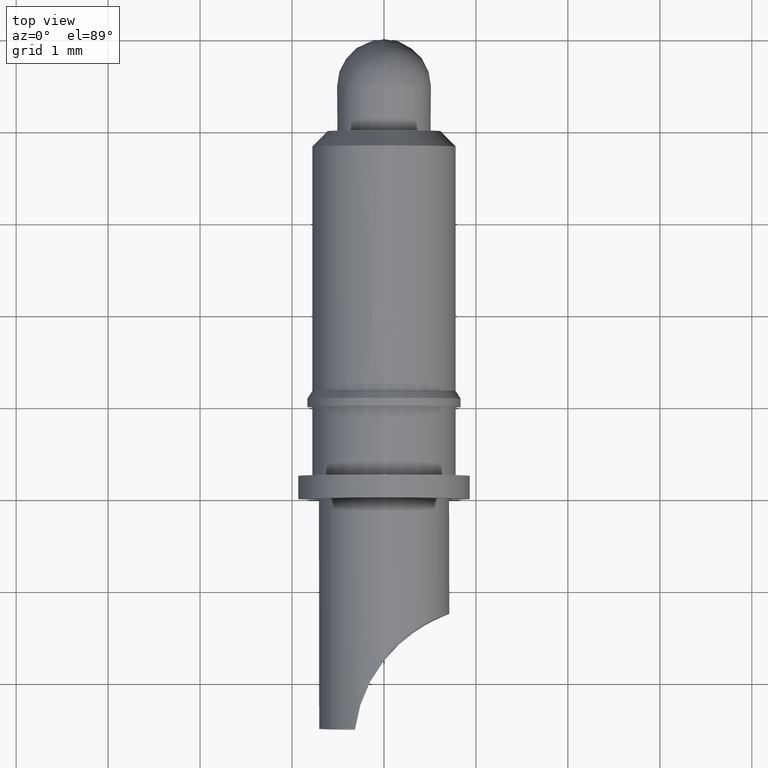
[diagram: clean part render]
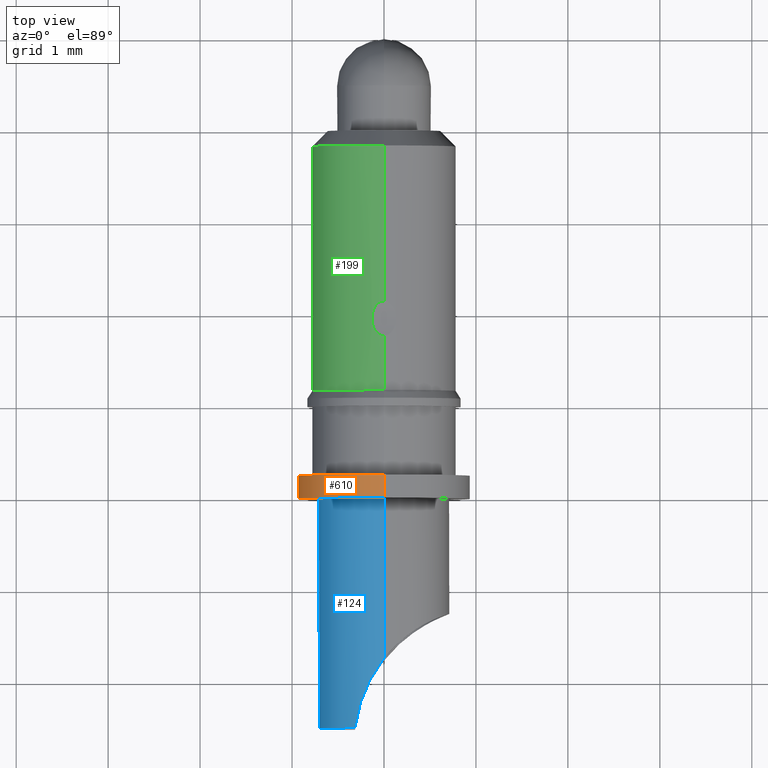
[diagram: same view with three faces highlighted in distinct colors, each labeled with its STEP entity id]
A machine part, top view with three faces highlighted in distinct colors.
Their STEP definitions:

[orange] entity #610 — the highlighted cylindrical surface (partial cylindrical patch) has radius 0.94 mm, axis along (-0, -1, -0).
#39 = VECTOR ( 'NONE', #562, 1000.000000000000000 ) ;
#64 = ORIENTED_EDGE ( 'NONE', *, *, #715, .T. ) ;
#71 = VERTEX_POINT ( 'NONE', #404 ) ;
#145 = VERTEX_POINT ( 'NONE', #155 ) ;
#148 = DIRECTION ( 'NONE',  ( -0.0000000000000000000, -1.000000000000000000, -0.0000000000000000000 ) ) ;
#155 = CARTESIAN_POINT ( 'NONE',  ( 0.0000000000000000000, -4.750000000000000000, -0.9400000000000000600 ) ) ;
#179 = LINE ( 'NONE', #631, #39 ) ;
#182 = DIRECTION ( 'NONE',  ( 0.0000000000000000000, 0.0000000000000000000, -1.000000000000000000 ) ) ;
#226 = VECTOR ( 'NONE', #148, 1000.000000000000000 ) ;
#230 = CARTESIAN_POINT ( 'NONE',  ( 0.0000000000000000000, -5.000000000000000000, -0.9399999999999999500 ) ) ;
#263 = ORIENTED_EDGE ( 'NONE', *, *, #1008, .F. ) ;
#280 = DIRECTION ( 'NONE',  ( 0.0000000000000000000, 0.0000000000000000000, -1.000000000000000000 ) ) ;
#320 = CYLINDRICAL_SURFACE ( 'NONE', #582, 0.9400000000000000600 ) ;
#338 = DIRECTION ( 'NONE',  ( 0.0000000000000000000, 0.0000000000000000000, -1.000000000000000000 ) ) ;
#367 = FACE_OUTER_BOUND ( 'NONE', #968, .T. ) ;
#404 = CARTESIAN_POINT ( 'NONE',  ( 1.151167991198511900E-016, -5.000000000000000000, 0.9399999999999999500 ) ) ;
#476 = DIRECTION ( 'NONE',  ( -0.0000000000000000000, -1.000000000000000000, -0.0000000000000000000 ) ) ;
#508 = VERTEX_POINT ( 'NONE', #230 ) ;
#536 = CARTESIAN_POINT ( 'NONE',  ( 1.151167991198512200E-016, -4.750000000000000000, 0.9400000000000000600 ) ) ;
#562 = DIRECTION ( 'NONE',  ( -0.0000000000000000000, -1.000000000000000000, -0.0000000000000000000 ) ) ;
#575 = DIRECTION ( 'NONE',  ( -0.0000000000000000000, -1.000000000000000000, -0.0000000000000000000 ) ) ;
#582 = AXIS2_PLACEMENT_3D ( 'NONE', #630, #476, #182 ) ;
#600 = AXIS2_PLACEMENT_3D ( 'NONE', #682, #852, #280 ) ;
#610 = ADVANCED_FACE ( 'NONE', ( #367 ), #320, .T. ) ;
#630 = CARTESIAN_POINT ( 'NONE',  ( 0.0000000000000000000, -7.500000000000000000, 0.0000000000000000000 ) ) ;
#631 = CARTESIAN_POINT ( 'NONE',  ( 1.151167991198512200E-016, -7.500000000000000000, 0.9400000000000000600 ) ) ;
#682 = CARTESIAN_POINT ( 'NONE',  ( 0.0000000000000000000, -5.000000000000000000, 0.0000000000000000000 ) ) ;
#715 = EDGE_CURVE ( 'NONE', #978, #145, #905, .T. ) ;
#735 = CIRCLE ( 'NONE', #600, 0.9399999999999999500 ) ;
#758 = CARTESIAN_POINT ( 'NONE',  ( 0.0000000000000000000, -4.750000000000000000, 0.0000000000000000000 ) ) ;
#790 = CARTESIAN_POINT ( 'NONE',  ( 0.0000000000000000000, -7.500000000000000000, -0.9400000000000000600 ) ) ;
#798 = EDGE_CURVE ( 'NONE', #71, #508, #735, .T. ) ;
#852 = DIRECTION ( 'NONE',  ( -0.0000000000000000000, -1.000000000000000000, -0.0000000000000000000 ) ) ;
#878 = ORIENTED_EDGE ( 'NONE', *, *, #798, .F. ) ;
#905 = CIRCLE ( 'NONE', #1047, 0.9400000000000000600 ) ;
#968 = EDGE_LOOP ( 'NONE', ( #263, #64, #981, #878 ) ) ;
#978 = VERTEX_POINT ( 'NONE', #536 ) ;
#979 = EDGE_CURVE ( 'NONE', #145, #508, #1055, .T. ) ;
#981 = ORIENTED_EDGE ( 'NONE', *, *, #979, .T. ) ;
#1008 = EDGE_CURVE ( 'NONE', #978, #71, #179, .T. ) ;
#1047 = AXIS2_PLACEMENT_3D ( 'NONE', #758, #575, #338 ) ;
#1055 = LINE ( 'NONE', #790, #226 ) ;

[blue] entity #124 — the highlighted cylindrical surface (partial cylindrical patch) has radius 0.71 mm, axis along (-0, -1, -0).
#4 = VECTOR ( 'NONE', #525, 1000.000000000000000 ) ;
#6 = CARTESIAN_POINT ( 'NONE',  ( -0.2631104609345315500, -7.227681637378874600, 0.6618008879620259600 ) ) ;
#14 = EDGE_CURVE ( 'NONE', #462, #164, #489, .T. ) ;
#15 = CYLINDRICAL_SURFACE ( 'NONE', #274, 0.7099999999999997400 ) ;
#19 = ORIENTED_EDGE ( 'NONE', *, *, #972, .T. ) ;
#23 = CARTESIAN_POINT ( 'NONE',  ( -0.2635044982526517600, -7.228909387678993600, -0.6616386385734699400 ) ) ;
#56 = FACE_OUTER_BOUND ( 'NONE', #754, .T. ) ;
#59 = CARTESIAN_POINT ( 'NONE',  ( -0.03313908946434639800, -5.023744344625494100, -0.7092261985780514700 ) ) ;
#81 = CARTESIAN_POINT ( 'NONE',  ( -4.789840502245096200E-012, -6.745476054699924600, -0.7100000000025881200 ) ) ;
#91 = CARTESIAN_POINT ( 'NONE',  ( -0.2989035589792125000, -7.361682529759360000, 0.6442954337939056400 ) ) ;
#99 = CARTESIAN_POINT ( 'NONE',  ( -0.3158944626379268100, -7.500000000000000000, 0.6358542981491081000 ) ) ;
#111 = CARTESIAN_POINT ( 'NONE',  ( -0.1571419117178258200, -6.974474287378640700, -0.6946270425447049800 ) ) ;
#124 = ADVANCED_FACE ( 'NONE', ( #56 ), #15, .T. ) ;
#164 = VERTEX_POINT ( 'NONE', #81 ) ;
#168 = CIRCLE ( 'NONE', #781, 0.7099999999999996300 ) ;
#172 = CARTESIAN_POINT ( 'NONE',  ( -0.03300324451895425600, -4.999999999999999100, -0.7092325329899202800 ) ) ;
#177 = EDGE_CURVE ( 'NONE', #583, #190, #713, .T. ) ;
#183 = CARTESIAN_POINT ( 'NONE',  ( 0.0000000000000000000, -7.500000000000000000, 0.0000000000000000000 ) ) ;
#187 = CARTESIAN_POINT ( 'NONE',  ( -4.789840502245096200E-012, -6.745476054699924600, -0.7100000000025881200 ) ) ;
#190 = VERTEX_POINT ( 'NONE', #983 ) ;
#213 = CARTESIAN_POINT ( 'NONE',  ( -0.02970063610689295500, -5.032980966549499300, -0.7093840916243324700 ) ) ;
#214 = CARTESIAN_POINT ( 'NONE',  ( -0.02413337804050792400, -5.040861177016869200, -0.7095950844336270700 ) ) ;
#219 = CARTESIAN_POINT ( 'NONE',  ( -0.004206879790116342300, -5.052745940933920800, -0.7099875366247150300 ) ) ;
#233 = VERTEX_POINT ( 'NONE', #846 ) ;
#274 = AXIS2_PLACEMENT_3D ( 'NONE', #183, #636, #1075 ) ;
#277 = DIRECTION ( 'NONE',  ( -0.0000000000000000000, -1.000000000000000000, -0.0000000000000000000 ) ) ;
#325 = ORIENTED_EDGE ( 'NONE', *, *, #334, .F. ) ;
#334 = EDGE_CURVE ( 'NONE', #501, #233, #992, .T. ) ;
#371 = EDGE_CURVE ( 'NONE', #686, #164, #392, .T. ) ;
#373 = VERTEX_POINT ( 'NONE', #1032 ) ;
#376 = CIRCLE ( 'NONE', #563, 0.7099999999999999600 ) ;
#379 = CARTESIAN_POINT ( 'NONE',  ( -0.03471901351167135100, -5.012111846687422400, -0.7091506117185374400 ) ) ;
#388 = CARTESIAN_POINT ( 'NONE',  ( -0.1566013442880433700, -6.973468839987347700, 0.6947543083189089400 ) ) ;
#392 = B_SPLINE_CURVE_WITH_KNOTS ( 'NONE', 3,
 ( #770, #507, #23, #111, #675, #187 ),
 .UNSPECIFIED., .F., .F.,
 ( 4, 2, 4 ),
 ( 0.0000000000000000000, 0.0004140760654828950800, 0.0008281521309657901600 ),
 .UNSPECIFIED. ) ;
#451 = ORIENTED_EDGE ( 'NONE', *, *, #177, .T. ) ;
#462 = VERTEX_POINT ( 'NONE', #477 ) ;
#463 = CARTESIAN_POINT ( 'NONE',  ( -0.008646363824633572200, -5.051613227296765100, -0.7099612314084965400 ) ) ;
#469 = CARTESIAN_POINT ( 'NONE',  ( -0.002822189261016318100, -5.053099238261573600, -0.7099957413132510500 ) ) ;
#477 = CARTESIAN_POINT ( 'NONE',  ( -1.757685472372374900E-013, -5.053571952264338300, -0.7100000000000273900 ) ) ;
#489 = LINE ( 'NONE', #786, #4 ) ;
#495 = ORIENTED_EDGE ( 'NONE', *, *, #669, .T. ) ;
#501 = VERTEX_POINT ( 'NONE', #635 ) ;
#504 = DIRECTION ( 'NONE',  ( 0.0000000000000000000, 0.0000000000000000000, -1.000000000000000000 ) ) ;
#507 = CARTESIAN_POINT ( 'NONE',  ( -0.2988539627061707600, -7.361278782486215800, -0.6443200733820397800 ) ) ;
#513 = CARTESIAN_POINT ( 'NONE',  ( 8.694992273946204500E-017, -7.500000000000000000, 0.7099999999999997400 ) ) ;
#525 = DIRECTION ( 'NONE',  ( -0.0000000000000000000, -1.000000000000000000, -0.0000000000000000000 ) ) ;
#534 = CARTESIAN_POINT ( 'NONE',  ( -0.03471901351170308300, -5.016025027854937900, -0.7091506117185556500 ) ) ;
#557 = CARTESIAN_POINT ( 'NONE',  ( -0.03462705859580832200, -5.009279182054630300, -0.7091551077253848100 ) ) ;
#563 = AXIS2_PLACEMENT_3D ( 'NONE', #916, #670, #504 ) ;
#583 = VERTEX_POINT ( 'NONE', #172 ) ;
#609 = EDGE_CURVE ( 'NONE', #233, #373, #647, .T. ) ;
#611 = CARTESIAN_POINT ( 'NONE',  ( 0.0000000000000000000, -7.500000000000000000, 0.0000000000000000000 ) ) ;
#620 = CARTESIAN_POINT ( 'NONE',  ( -0.03418427513145413900, -5.019973643269577400, -0.7091773615477802200 ) ) ;
#632 = CARTESIAN_POINT ( 'NONE',  ( -0.08677008956328073600, -6.854827910880077400, 0.7099999999999999600 ) ) ;
#635 = CARTESIAN_POINT ( 'NONE',  ( 8.694992273946207000E-017, -5.000000000000000000, 0.7099999999999998500 ) ) ;
#636 = DIRECTION ( 'NONE',  ( -0.0000000000000000000, -1.000000000000000000, -0.0000000000000000000 ) ) ;
#638 = CARTESIAN_POINT ( 'NONE',  ( -1.757685472372374900E-013, -5.053571952264338300, -0.7100000000000273900 ) ) ;
#643 = CARTESIAN_POINT ( 'NONE',  ( -0.001415521660649678500, -5.053375604081658400, -0.7099999999999995200 ) ) ;
#647 = B_SPLINE_CURVE_WITH_KNOTS ( 'NONE', 3,
 ( #654, #632, #388, #6, #91, #99 ),
 .UNSPECIFIED., .F., .F.,
 ( 4, 2, 4 ),
 ( 0.003338050567740957500, 0.003751116633997761900, 0.004164182700254566800 ),
 .UNSPECIFIED. ) ;
#654 = CARTESIAN_POINT ( 'NONE',  ( -1.382321736671377400E-016, -6.745476054699047100, 0.7099999999999997400 ) ) ;
#669 = EDGE_CURVE ( 'NONE', #501, #583, #376, .T. ) ;
#670 = DIRECTION ( 'NONE',  ( -0.0000000000000000000, -1.000000000000000000, -0.0000000000000000000 ) ) ;
#675 = CARTESIAN_POINT ( 'NONE',  ( -0.08632937872354243300, -6.854272505802538400, -0.7099999999997520500 ) ) ;
#686 = VERTEX_POINT ( 'NONE', #1012 ) ;
#702 = DIRECTION ( 'NONE',  ( -0.0000000000000000000, -1.000000000000000000, -0.0000000000000000000 ) ) ;
#709 = CARTESIAN_POINT ( 'NONE',  ( -0.02688889653421567400, -5.036960861023210600, -0.7094906533867602100 ) ) ;
#713 = B_SPLINE_CURVE_WITH_KNOTS ( 'NONE', 3,
 ( #817, #739, #897, #557, #900, #910, #824 ),
 .UNSPECIFIED., .F., .F.,
 ( 4, 3, 4 ),
 ( 1.879393732798536500E-005, 2.819604641146063200E-005, 3.100514347215289200E-005 ),
 .UNSPECIFIED. ) ;
#714 = ORIENTED_EDGE ( 'NONE', *, *, #14, .T. ) ;
#716 = CARTESIAN_POINT ( 'NONE',  ( -0.03183725005476098500, -5.028440972010841400, -0.7092870279336913600 ) ) ;
#739 = CARTESIAN_POINT ( 'NONE',  ( -0.03387674334184055000, -5.003015959676947200, -0.7091918858200602100 ) ) ;
#754 = EDGE_LOOP ( 'NONE', ( #325, #495, #451, #19, #714, #1015, #814, #776 ) ) ;
#764 = VECTOR ( 'NONE', #277, 1000.000000000000000 ) ;
#770 = CARTESIAN_POINT ( 'NONE',  ( -0.3158944626379268100, -7.500000000000000000, -0.6358542981491081000 ) ) ;
#776 = ORIENTED_EDGE ( 'NONE', *, *, #609, .F. ) ;
#781 = AXIS2_PLACEMENT_3D ( 'NONE', #611, #702, #801 ) ;
#786 = CARTESIAN_POINT ( 'NONE',  ( 0.0000000000000000000, -7.500000000000000000, -0.7099999999999997400 ) ) ;
#801 = DIRECTION ( 'NONE',  ( 0.0000000000000000000, 0.0000000000000000000, -1.000000000000000000 ) ) ;
#814 = ORIENTED_EDGE ( 'NONE', *, *, #898, .F. ) ;
#817 = CARTESIAN_POINT ( 'NONE',  ( -0.03300324451895425600, -4.999999999999999100, -0.7092325329899202800 ) ) ;
#824 = CARTESIAN_POINT ( 'NONE',  ( -0.03471901351167135100, -5.012111846687422400, -0.7091506117185374400 ) ) ;
#846 = CARTESIAN_POINT ( 'NONE',  ( -1.382321736671377400E-016, -6.745476054699047100, 0.7099999999999997400 ) ) ;
#879 = CARTESIAN_POINT ( 'NONE',  ( -0.02064590964322060200, -5.044336177566235900, -0.7097106602449588800 ) ) ;
#880 = CARTESIAN_POINT ( 'NONE',  ( -0.01294089836235749700, -5.049644654410902200, -0.7098920842151690300 ) ) ;
#897 = CARTESIAN_POINT ( 'NONE',  ( -0.03442338176206215900, -5.006145640607922300, -0.7091650529821838000 ) ) ;
#898 = EDGE_CURVE ( 'NONE', #373, #686, #168, .T. ) ;
#900 = CARTESIAN_POINT ( 'NONE',  ( -0.03468833477693061800, -5.010221908086408300, -0.7091521156945989100 ) ) ;
#910 = CARTESIAN_POINT ( 'NONE',  ( -0.03471901351170317300, -5.011167126573521800, -0.7091506117185556500 ) ) ;
#916 = CARTESIAN_POINT ( 'NONE',  ( 0.0000000000000000000, -5.000000000000000000, 0.0000000000000000000 ) ) ;
#927 = B_SPLINE_CURVE_WITH_KNOTS ( 'NONE', 3,
 ( #379, #534, #620, #59, #716, #213, #709, #214, #879, #967, #880, #463, #219, #469, #643, #638 ),
 .UNSPECIFIED., .F., .F.,
 ( 4, 3, 3, 3, 3, 4 ),
 ( 3.100514347215289200E-005, 4.274167898244638800E-005, 5.737636799571663700E-005, 7.172207726194673400E-005, 8.547789539400263000E-005, 8.973523207193083900E-005 ),
 .UNSPECIFIED. ) ;
#967 = CARTESIAN_POINT ( 'NONE',  ( -0.01671319106153182000, -5.047045679832551800, -0.7098032609424531600 ) ) ;
#972 = EDGE_CURVE ( 'NONE', #190, #462, #927, .T. ) ;
#983 = CARTESIAN_POINT ( 'NONE',  ( -0.03471901351167135100, -5.012111846687422400, -0.7091506117185374400 ) ) ;
#992 = LINE ( 'NONE', #513, #764 ) ;
#1012 = CARTESIAN_POINT ( 'NONE',  ( -0.3158944626379268100, -7.500000000000000000, -0.6358542981491081000 ) ) ;
#1015 = ORIENTED_EDGE ( 'NONE', *, *, #371, .F. ) ;
#1032 = CARTESIAN_POINT ( 'NONE',  ( -0.3158944626379268100, -7.500000000000000000, 0.6358542981491081000 ) ) ;
#1075 = DIRECTION ( 'NONE',  ( 0.0000000000000000000, 0.0000000000000000000, -1.000000000000000000 ) ) ;

[green] entity #199 — the highlighted cylindrical surface (partial cylindrical patch) has radius 0.785 mm, axis along (-0, -1, -0).
#32 = EDGE_LOOP ( 'NONE', ( #848, #73, #751, #794, #1017, #652 ) ) ;
#68 = DIRECTION ( 'NONE',  ( 0.0000000000000000000, 0.0000000000000000000, -1.000000000000000000 ) ) ;
#73 = ORIENTED_EDGE ( 'NONE', *, *, #595, .T. ) ;
#74 = CARTESIAN_POINT ( 'NONE',  ( 0.0000000000000000000, -3.827026094832439300, 0.0000000000000000000 ) ) ;
#76 = EDGE_CURVE ( 'NONE', #409, #461, #745, .T. ) ;
#88 = CARTESIAN_POINT ( 'NONE',  ( 9.613477373306723600E-017, -7.500000000000000000, 0.7850000000000001400 ) ) ;
#107 = VECTOR ( 'NONE', #203, 1000.000000000000000 ) ;
#135 = CARTESIAN_POINT ( 'NONE',  ( -0.07689549965215306000, -3.204855626722058900, 0.7814174142619020300 ) ) ;
#138 = CARTESIAN_POINT ( 'NONE',  ( -4.683753385137379200E-014, -3.236643955370674500, 0.7850000000000001400 ) ) ;
#141 = EDGE_CURVE ( 'NONE', #634, #521, #431, .T. ) ;
#199 = ADVANCED_FACE ( 'NONE', ( #279 ), #828, .T. ) ;
#203 = DIRECTION ( 'NONE',  ( -0.0000000000000000000, -1.000000000000000000, -0.0000000000000000000 ) ) ;
#206 = AXIS2_PLACEMENT_3D ( 'NONE', #996, #890, #717 ) ;
#244 = EDGE_CURVE ( 'NONE', #995, #854, #791, .T. ) ;
#260 = CARTESIAN_POINT ( 'NONE',  ( 9.613477373306723600E-017, -7.500000000000000000, 0.7850000000000001400 ) ) ;
#279 = FACE_OUTER_BOUND ( 'NONE', #32, .T. ) ;
#295 = CARTESIAN_POINT ( 'NONE',  ( 0.0000000000000000000, -2.860121219378511300, 0.7850000000000001400 ) ) ;
#300 = CARTESIAN_POINT ( 'NONE',  ( -0.1311088493760200800, -3.090261671359683300, 0.7739738171990033800 ) ) ;
#317 = DIRECTION ( 'NONE',  ( -0.0000000000000000000, -1.000000000000000000, -0.0000000000000000000 ) ) ;
#343 = DIRECTION ( 'NONE',  ( -0.0000000000000000000, -1.000000000000000000, -0.0000000000000000000 ) ) ;
#375 = CARTESIAN_POINT ( 'NONE',  ( -0.04290249303482265900, -2.860121219378511700, 0.7850000000000002500 ) ) ;
#384 = CARTESIAN_POINT ( 'NONE',  ( 0.0000000000000000000, -3.827026094832439300, -0.7850000000000001400 ) ) ;
#389 = CARTESIAN_POINT ( 'NONE',  ( 9.613477373306723600E-017, -3.827026094832439300, 0.7850000000000001400 ) ) ;
#409 = VERTEX_POINT ( 'NONE', #724 ) ;
#431 = LINE ( 'NONE', #993, #622 ) ;
#436 = AXIS2_PLACEMENT_3D ( 'NONE', #554, #642, #493 ) ;
#461 = VERTEX_POINT ( 'NONE', #389 ) ;
#466 = CARTESIAN_POINT ( 'NONE',  ( 9.613477373306722300E-017, -1.168190774742366100, 0.7850000000000000300 ) ) ;
#493 = DIRECTION ( 'NONE',  ( 0.0000000000000000000, 0.0000000000000000000, -1.000000000000000000 ) ) ;
#521 = VERTEX_POINT ( 'NONE', #384 ) ;
#540 = CARTESIAN_POINT ( 'NONE',  ( -0.08006005416794805000, -2.890035631635697700, 0.7811983044380354000 ) ) ;
#554 = CARTESIAN_POINT ( 'NONE',  ( 0.0000000000000000000, -7.500000000000000000, 0.0000000000000000000 ) ) ;
#595 = EDGE_CURVE ( 'NONE', #995, #634, #930, .T. ) ;
#622 = VECTOR ( 'NONE', #317, 1000.000000000000000 ) ;
#624 = CARTESIAN_POINT ( 'NONE',  ( -0.02111328528244596100, -3.236643955417323000, 0.7850000000086032600 ) ) ;
#634 = VERTEX_POINT ( 'NONE', #750 ) ;
#642 = DIRECTION ( 'NONE',  ( -0.0000000000000000000, -1.000000000000000000, -0.0000000000000000000 ) ) ;
#646 = DIRECTION ( 'NONE',  ( -0.0000000000000000000, -1.000000000000000000, -0.0000000000000000000 ) ) ;
#652 = ORIENTED_EDGE ( 'NONE', *, *, #914, .T. ) ;
#705 = CARTESIAN_POINT ( 'NONE',  ( -0.04229157365504265800, -3.229231424790318000, 0.7840519855062488800 ) ) ;
#717 = DIRECTION ( 'NONE',  ( 0.0000000000000000000, 0.0000000000000000000, -1.000000000000000000 ) ) ;
#724 = CARTESIAN_POINT ( 'NONE',  ( -4.683753385137379200E-014, -3.236643955370674500, 0.7850000000000001400 ) ) ;
#745 = LINE ( 'NONE', #88, #107 ) ;
#750 = CARTESIAN_POINT ( 'NONE',  ( 0.0000000000000000000, -1.168190774742366100, -0.7850000000000000300 ) ) ;
#751 = ORIENTED_EDGE ( 'NONE', *, *, #141, .T. ) ;
#780 = CARTESIAN_POINT ( 'NONE',  ( 0.0000000000000000000, -2.860121219378511300, 0.7850000000000001400 ) ) ;
#791 = LINE ( 'NONE', #260, #1010 ) ;
#794 = ORIENTED_EDGE ( 'NONE', *, *, #1074, .F. ) ;
#795 = CARTESIAN_POINT ( 'NONE',  ( -0.1310897005603181300, -3.006373042271684300, 0.7739770607074258900 ) ) ;
#796 = CARTESIAN_POINT ( 'NONE',  ( -0.09072714930283654100, -3.188265885685776200, 0.7798123302119246400 ) ) ;
#812 = B_SPLINE_CURVE_WITH_KNOTS ( 'NONE', 3,
 ( #138, #624, #705, #135, #796, #957, #300, #795, #963, #540, #375, #295 ),
 .UNSPECIFIED., .F., .F.,
 ( 4, 2, 2, 2, 2, 4 ),
 ( 0.0005075873221924422000, 0.0005709819265135979700, 0.0006343765308347536200, 0.0007611657394770651500, 0.0008879549481193765600, 0.001014744156761688000 ),
 .UNSPECIFIED. ) ;
#828 = CYLINDRICAL_SURFACE ( 'NONE', #436, 0.7850000000000001400 ) ;
#848 = ORIENTED_EDGE ( 'NONE', *, *, #244, .F. ) ;
#854 = VERTEX_POINT ( 'NONE', #780 ) ;
#890 = DIRECTION ( 'NONE',  ( -0.0000000000000000000, -1.000000000000000000, -0.0000000000000000000 ) ) ;
#914 = EDGE_CURVE ( 'NONE', #409, #854, #812, .T. ) ;
#930 = CIRCLE ( 'NONE', #206, 0.7850000000000000300 ) ;
#948 = AXIS2_PLACEMENT_3D ( 'NONE', #74, #646, #68 ) ;
#957 = CARTESIAN_POINT ( 'NONE',  ( -0.1224467838063225100, -3.133144104803065900, 0.7756845550996418500 ) ) ;
#963 = CARTESIAN_POINT ( 'NONE',  ( -0.1223840988646648900, -2.963438989755709900, 0.7756948726627759200 ) ) ;
#970 = CIRCLE ( 'NONE', #948, 0.7850000000000001400 ) ;
#993 = CARTESIAN_POINT ( 'NONE',  ( 0.0000000000000000000, -7.500000000000000000, -0.7850000000000001400 ) ) ;
#995 = VERTEX_POINT ( 'NONE', #466 ) ;
#996 = CARTESIAN_POINT ( 'NONE',  ( 0.0000000000000000000, -1.168190774742366100, 0.0000000000000000000 ) ) ;
#1010 = VECTOR ( 'NONE', #343, 1000.000000000000000 ) ;
#1017 = ORIENTED_EDGE ( 'NONE', *, *, #76, .F. ) ;
#1074 = EDGE_CURVE ( 'NONE', #461, #521, #970, .T. ) ;